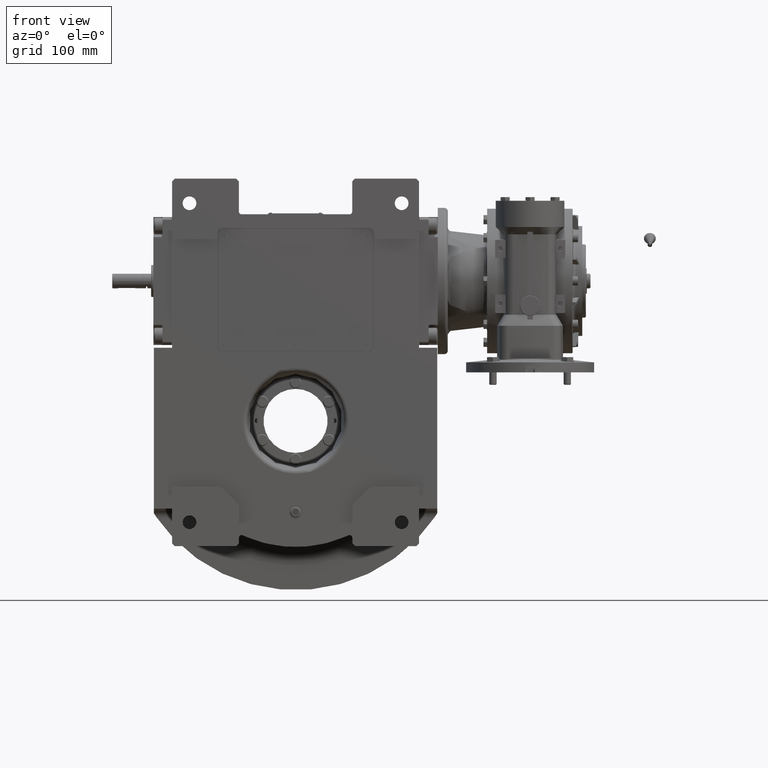
[diagram: clean part render]
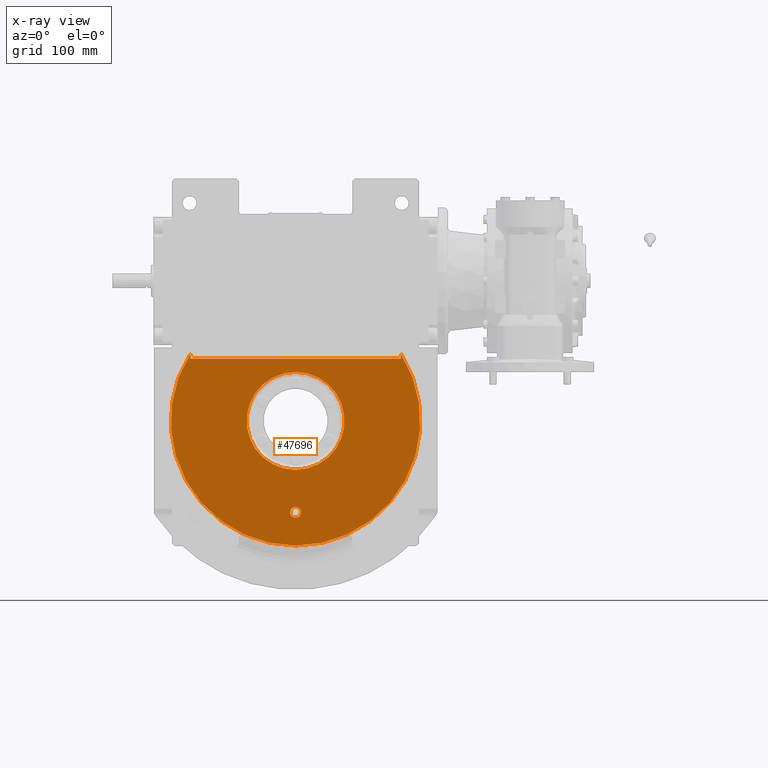
[diagram: x-ray — body ghosted, one internal face saturated and labeled with its STEP entity id]
A machine part, front view, then the same camera in x-ray: the body is ghosted and one INTERNAL B-rep face — a face not visible from any outside direction — is saturated and labeled: STEP entity #47696.
In plain terms, the highlighted planar face has unit normal (0, -1, 0).
Its self-contained STEP definition (entity closure, byte-faithful):
#370 = CIRCLE ( 'NONE', #95870, 53.50000000000000000 ) ;
#495 = AXIS2_PLACEMENT_3D ( 'NONE', #50919, #16996, #131216 ) ;
#2740 = DIRECTION ( 'NONE',  ( 1.000000000000000000, -2.362176648138630895E-15, 0.000000000000000000 ) ) ;
#4559 = ORIENTED_EDGE ( 'NONE', *, *, #93208, .T. ) ;
#6388 = VECTOR ( 'NONE', #122247, 1000.000000000000000 ) ;
#6660 = EDGE_CURVE ( 'NONE', #94501, #49390, #80945, .T. ) ;
#7616 = EDGE_LOOP ( 'NONE', ( #71761, #96834, #17588, #131543, #37161 ) ) ;
#8268 = VERTEX_POINT ( 'NONE', #26299 ) ;
#8816 = DIRECTION ( 'NONE',  ( 0.000000000000000000, 1.000000000000000000, 0.000000000000000000 ) ) ;
#9453 = CARTESIAN_POINT ( 'NONE',  ( -115.0000000000000000, -63.00000000000000000, 73.53400573884168523 ) ) ;
#10882 = DIRECTION ( 'NONE',  ( 0.000000000000000000, 1.000000000000000000, 0.000000000000000000 ) ) ;
#10937 = VERTEX_POINT ( 'NONE', #76672 ) ;
#13267 = DIRECTION ( 'NONE',  ( -1.000000000000000000, 0.000000000000000000, 0.000000000000000000 ) ) ;
#16996 = DIRECTION ( 'NONE',  ( 0.000000000000000000, 1.000000000000000000, 0.000000000000000000 ) ) ;
#17105 = CARTESIAN_POINT ( 'NONE',  ( 0.000000000000000000, -63.00000000000000000, -53.50000000000000000 ) ) ;
#17588 = ORIENTED_EDGE ( 'NONE', *, *, #28193, .T. ) ;
#21077 = CARTESIAN_POINT ( 'NONE',  ( 0.000000000000000000, -63.00000000000000000, 0.000000000000000000 ) ) ;
#21224 = DIRECTION ( 'NONE',  ( 0.000000000000000000, 0.000000000000000000, 1.000000000000000000 ) ) ;
#23728 = CIRCLE ( 'NONE', #25871, 5.875000000000000000 ) ;
#24914 = DIRECTION ( 'NONE',  ( 0.000000000000000000, 0.000000000000000000, 1.000000000000000000 ) ) ;
#25871 = AXIS2_PLACEMENT_3D ( 'NONE', #113236, #106390, #13267 ) ;
#26299 = CARTESIAN_POINT ( 'NONE',  ( -5.875000000000000000, -63.00000000000000000, -100.0000000000000000 ) ) ;
#27078 = VERTEX_POINT ( 'NONE', #84015 ) ;
#28193 = EDGE_CURVE ( 'NONE', #27078, #49473, #83043, .T. ) ;
#28600 = AXIS2_PLACEMENT_3D ( 'NONE', #111667, #107835, #24914 ) ;
#30214 = FACE_BOUND ( 'NONE', #90002, .T. ) ;
#31537 = CARTESIAN_POINT ( 'NONE',  ( 0.000000000000000000, -63.00000000000000000, 2.534751534906250014E-14 ) ) ;
#33094 = EDGE_CURVE ( 'NONE', #27078, #76034, #50409, .T. ) ;
#37161 = ORIENTED_EDGE ( 'NONE', *, *, #6660, .T. ) ;
#41775 = CIRCLE ( 'NONE', #495, 53.50000000000000000 ) ;
#42334 = AXIS2_PLACEMENT_3D ( 'NONE', #31537, #134242, #114466 ) ;
#43552 = DIRECTION ( 'NONE',  ( -1.209434443846979996E-15, -1.000000000000000000, 1.209434443846979996E-15 ) ) ;
#44161 = DIRECTION ( 'NONE',  ( 0.000000000000000000, 0.000000000000000000, 1.000000000000000000 ) ) ;
#47444 = CIRCLE ( 'NONE', #110391, 5.875000000000000000 ) ;
#47484 = VECTOR ( 'NONE', #60613, 1000.000000000000000 ) ;
#47696 = ADVANCED_FACE ( 'NONE', ( #63484, #83186, #30214 ), #92722, .F. ) ;
#49375 = ORIENTED_EDGE ( 'NONE', *, *, #127482, .T. ) ;
#49390 = VERTEX_POINT ( 'NONE', #9453 ) ;
#49473 = VERTEX_POINT ( 'NONE', #133683 ) ;
#50409 = LINE ( 'NONE', #51071, #47484 ) ;
#50919 = CARTESIAN_POINT ( 'NONE',  ( 0.000000000000000000, -63.00000000000000000, 0.000000000000000000 ) ) ;
#51071 = CARTESIAN_POINT ( 'NONE',  ( 0.000000000000000000, -62.99999999999998579, 67.99999999999997158 ) ) ;
#60613 = DIRECTION ( 'NONE',  ( -1.000000000000000000, 0.000000000000000000, 0.000000000000000000 ) ) ;
#62473 = CARTESIAN_POINT ( 'NONE',  ( 0.000000000000000000, -63.00000000000000000, 0.000000000000000000 ) ) ;
#63484 = FACE_OUTER_BOUND ( 'NONE', #7616, .T. ) ;
#64020 = CARTESIAN_POINT ( 'NONE',  ( 115.0000000000000000, -63.00000000000000000, 0.000000000000000000 ) ) ;
#66259 = EDGE_CURVE ( 'NONE', #76034, #49390, #101194, .T. ) ;
#70032 = EDGE_CURVE ( 'NONE', #49473, #94501, #102251, .T. ) ;
#71761 = ORIENTED_EDGE ( 'NONE', *, *, #66259, .F. ) ;
#76034 = VERTEX_POINT ( 'NONE', #113344 ) ;
#76672 = CARTESIAN_POINT ( 'NONE',  ( 5.875000000000000000, -63.00000000000000000, -100.0000000000000000 ) ) ;
#80945 = CIRCLE ( 'NONE', #117921, 136.5000000000000000 ) ;
#81795 = EDGE_CURVE ( 'NONE', #107769, #121136, #370, .T. ) ;
#82957 = CARTESIAN_POINT ( 'NONE',  ( 0.000000000000000000, -63.00000000000000000, -100.0000000000000000 ) ) ;
#83043 = LINE ( 'NONE', #64020, #92330 ) ;
#83186 = FACE_BOUND ( 'NONE', #129035, .T. ) ;
#84015 = CARTESIAN_POINT ( 'NONE',  ( 115.0000000000000000, -63.00000000000000000, 67.99999999999997158 ) ) ;
#90002 = EDGE_LOOP ( 'NONE', ( #115139, #131073 ) ) ;
#91644 = CARTESIAN_POINT ( 'NONE',  ( -115.0000000000000000, -63.00000000000000000, 0.000000000000000000 ) ) ;
#92330 = VECTOR ( 'NONE', #21224, 1000.000000000000000 ) ;
#92722 = PLANE ( 'NONE',  #42334 ) ;
#93208 = EDGE_CURVE ( 'NONE', #8268, #10937, #23728, .T. ) ;
#94501 = VERTEX_POINT ( 'NONE', #120470 ) ;
#95870 = AXIS2_PLACEMENT_3D ( 'NONE', #62473, #8816, #112796 ) ;
#96806 = EDGE_CURVE ( 'NONE', #121136, #107769, #41775, .T. ) ;
#96834 = ORIENTED_EDGE ( 'NONE', *, *, #33094, .F. ) ;
#101194 = LINE ( 'NONE', #91644, #6388 ) ;
#102251 = CIRCLE ( 'NONE', #28600, 136.5000000000000000 ) ;
#106390 = DIRECTION ( 'NONE',  ( 0.000000000000000000, -1.000000000000000000, 0.000000000000000000 ) ) ;
#106624 = CARTESIAN_POINT ( 'NONE',  ( 6.551860375438339893E-15, -63.00000000000000000, 53.50000000000000000 ) ) ;
#107769 = VERTEX_POINT ( 'NONE', #106624 ) ;
#107835 = DIRECTION ( 'NONE',  ( 0.000000000000000000, 1.000000000000000000, 0.000000000000000000 ) ) ;
#110391 = AXIS2_PLACEMENT_3D ( 'NONE', #82957, #43552, #2740 ) ;
#111667 = CARTESIAN_POINT ( 'NONE',  ( 0.000000000000000000, -63.00000000000000000, 0.000000000000000000 ) ) ;
#112796 = DIRECTION ( 'NONE',  ( 0.000000000000000000, 0.000000000000000000, 1.000000000000000000 ) ) ;
#113236 = CARTESIAN_POINT ( 'NONE',  ( 0.000000000000000000, -63.00000000000000000, -100.0000000000000000 ) ) ;
#113344 = CARTESIAN_POINT ( 'NONE',  ( -115.0000000000000000, -63.00000000000000000, 67.99999999999997158 ) ) ;
#114466 = DIRECTION ( 'NONE',  ( 0.000000000000000000, 1.836909530733564901E-16, 1.000000000000000000 ) ) ;
#115139 = ORIENTED_EDGE ( 'NONE', *, *, #96806, .F. ) ;
#117921 = AXIS2_PLACEMENT_3D ( 'NONE', #21077, #10882, #44161 ) ;
#120470 = CARTESIAN_POINT ( 'NONE',  ( 0.000000000000000000, -63.00000000000000000, -136.5000000000000000 ) ) ;
#121136 = VERTEX_POINT ( 'NONE', #17105 ) ;
#122247 = DIRECTION ( 'NONE',  ( 0.000000000000000000, 0.000000000000000000, 1.000000000000000000 ) ) ;
#127482 = EDGE_CURVE ( 'NONE', #10937, #8268, #47444, .T. ) ;
#129035 = EDGE_LOOP ( 'NONE', ( #49375, #4559 ) ) ;
#131073 = ORIENTED_EDGE ( 'NONE', *, *, #81795, .F. ) ;
#131216 = DIRECTION ( 'NONE',  ( 0.000000000000000000, 0.000000000000000000, 1.000000000000000000 ) ) ;
#131543 = ORIENTED_EDGE ( 'NONE', *, *, #70032, .T. ) ;
#133683 = CARTESIAN_POINT ( 'NONE',  ( 115.0000000000000000, -63.00000000000000000, 73.53400573884168523 ) ) ;
#134242 = DIRECTION ( 'NONE',  ( 0.000000000000000000, -1.000000000000000000, 1.836909530733564901E-16 ) ) ;